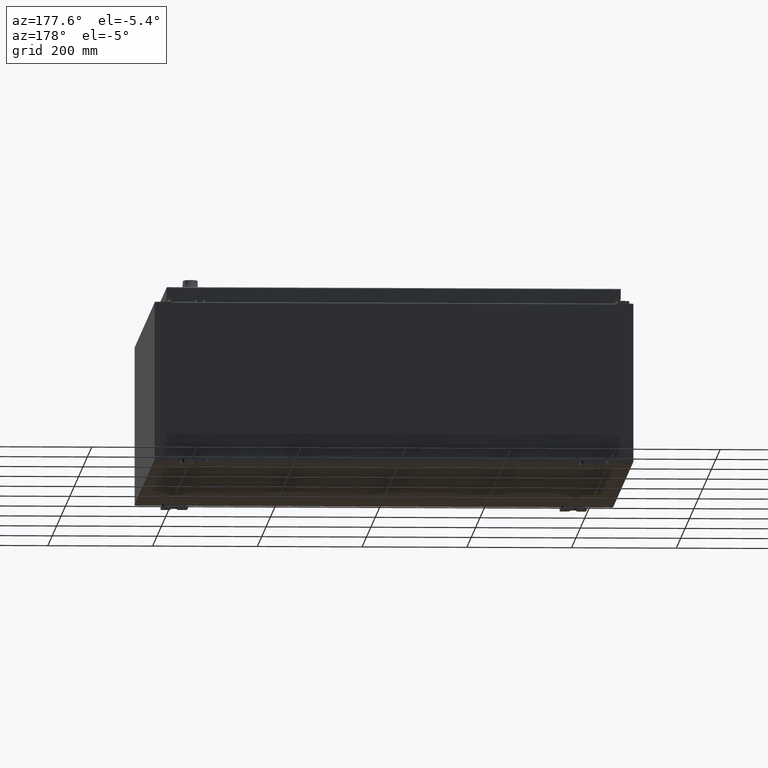
[diagram: clean part render]
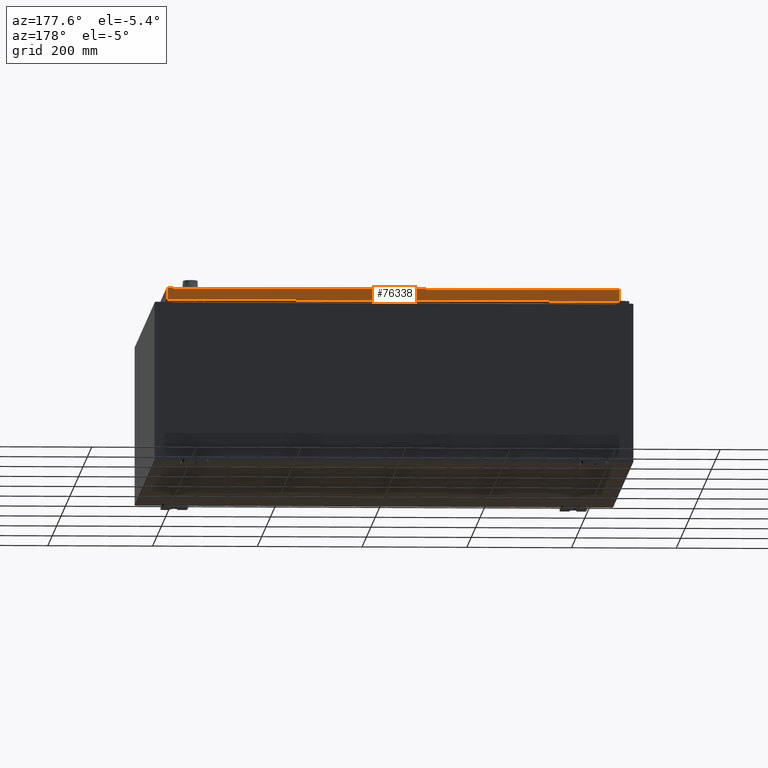
[diagram: same view with one face highlighted and labeled with its STEP entity id]
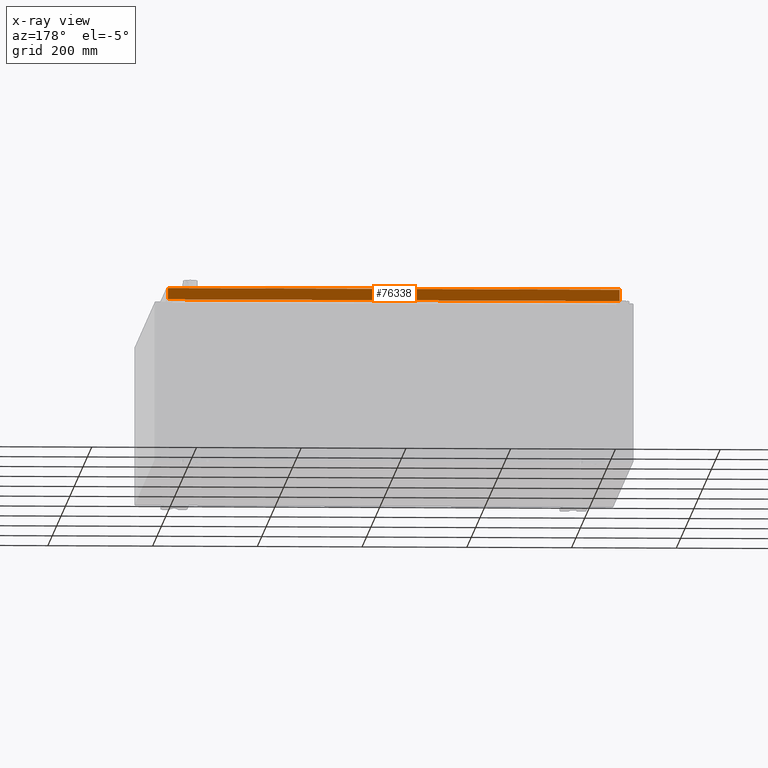
[diagram: x-ray of the same camera — body ghosted, the highlighted face saturated]
A machine part, auxiliary view. The second image highlights one B-rep face of the part: STEP entity #76338.
The next image is the same camera in x-ray: the body ghosted, the highlighted face saturated — about 0% of this face is hidden behind the body in this view.
In plain terms, the highlighted planar face has unit normal (0, -1, -0).
Its self-contained STEP definition (entity closure, byte-faithful):
#2456 = VERTEX_POINT ( 'NONE', #15855 ) ;
#4965 = AXIS2_PLACEMENT_3D ( 'NONE', #59053, #40170, #107080 ) ;
#5202 = LINE ( 'NONE', #56994, #56083 ) ;
#9002 = VERTEX_POINT ( 'NONE', #118177 ) ;
#15855 = CARTESIAN_POINT ( 'NONE',  ( 16.98915786437627100, 17.09400000000000500, -0.08769999999999789100 ) ) ;
#17651 = ORIENTED_EDGE ( 'NONE', *, *, #114521, .F. ) ;
#20331 = VECTOR ( 'NONE', #30698, 39.37007874015748100 ) ;
#21037 = CARTESIAN_POINT ( 'NONE',  ( -16.98915786437626400, 17.09400000000000500, -0.07469999999999980800 ) ) ;
#26231 = FACE_OUTER_BOUND ( 'NONE', #112046, .T. ) ;
#30577 = PLANE ( 'NONE',  #4965 ) ;
#30698 = DIRECTION ( 'NONE',  ( -0.0000000000000000000, 2.532419924601853900E-015, -1.000000000000000000 ) ) ;
#35085 = EDGE_CURVE ( 'NONE', #109982, #9002, #64839, .T. ) ;
#39382 = VECTOR ( 'NONE', #115237, 39.37007874015748100 ) ;
#40170 = DIRECTION ( 'NONE',  ( 3.139474396801564100E-031, -1.000000000000000000, -2.532419924601853900E-015 ) ) ;
#41790 = ORIENTED_EDGE ( 'NONE', *, *, #109278, .F. ) ;
#43980 = CARTESIAN_POINT ( 'NONE',  ( -16.98915786437626400, 17.09400000000000800, -0.9377000000000040900 ) ) ;
#45807 = LINE ( 'NONE', #21037, #20331 ) ;
#56083 = VECTOR ( 'NONE', #123866, 39.37007874015748100 ) ;
#56994 = CARTESIAN_POINT ( 'NONE',  ( 16.98915786437627100, 17.09400000000000500, 4.354999984715568300E-014 ) ) ;
#58193 = VERTEX_POINT ( 'NONE', #121383 ) ;
#59053 = CARTESIAN_POINT ( 'NONE',  ( -5.366617533892595200E-030, 17.09400000000000500, 4.354999984715568300E-014 ) ) ;
#60699 = ORIENTED_EDGE ( 'NONE', *, *, #35085, .F. ) ;
#64839 = LINE ( 'NONE', #105657, #39382 ) ;
#69997 = VECTOR ( 'NONE', #89992, 39.37007874015748100 ) ;
#70785 = CARTESIAN_POINT ( 'NONE',  ( -17.07799999999999600, 17.09400000000000500, -0.08770000000000008300 ) ) ;
#71946 = ORIENTED_EDGE ( 'NONE', *, *, #117682, .T. ) ;
#76338 = ADVANCED_FACE ( 'NONE', ( #26231 ), #30577, .F. ) ;
#89992 = DIRECTION ( 'NONE',  ( -1.000000000000000000, -1.519100514581402700E-031, -6.398519718150284000E-017 ) ) ;
#105657 = CARTESIAN_POINT ( 'NONE',  ( -17.07799999999999600, 17.09400000000000800, -0.9377000000000040900 ) ) ;
#107080 = DIRECTION ( 'NONE',  ( 0.0000000000000000000, 2.532419924601853900E-015, -1.000000000000000000 ) ) ;
#109278 = EDGE_CURVE ( 'NONE', #58193, #109982, #45807, .T. ) ;
#109982 = VERTEX_POINT ( 'NONE', #43980 ) ;
#112046 = EDGE_LOOP ( 'NONE', ( #17651, #71946, #60699, #41790 ) ) ;
#114521 = EDGE_CURVE ( 'NONE', #2456, #58193, #120829, .T. ) ;
#115237 = DIRECTION ( 'NONE',  ( 1.000000000000000000, 4.379057701015054300E-047, 1.239713195391617600E-016 ) ) ;
#117682 = EDGE_CURVE ( 'NONE', #2456, #9002, #5202, .T. ) ;
#118177 = CARTESIAN_POINT ( 'NONE',  ( 16.98915786437627100, 17.09400000000000800, -0.9376999999999997600 ) ) ;
#120829 = LINE ( 'NONE', #70785, #69997 ) ;
#121383 = CARTESIAN_POINT ( 'NONE',  ( -16.98915786437626700, 17.09400000000000500, -0.08769999999999898700 ) ) ;
#123866 = DIRECTION ( 'NONE',  ( 0.0000000000000000000, 2.532419924601853900E-015, -1.000000000000000000 ) ) ;